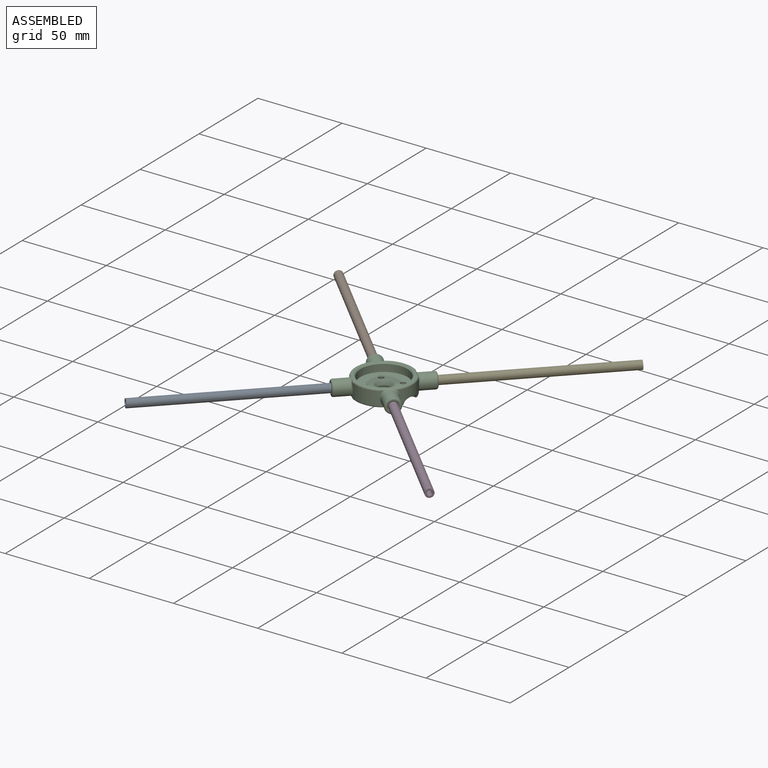
[diagram: assembled view]
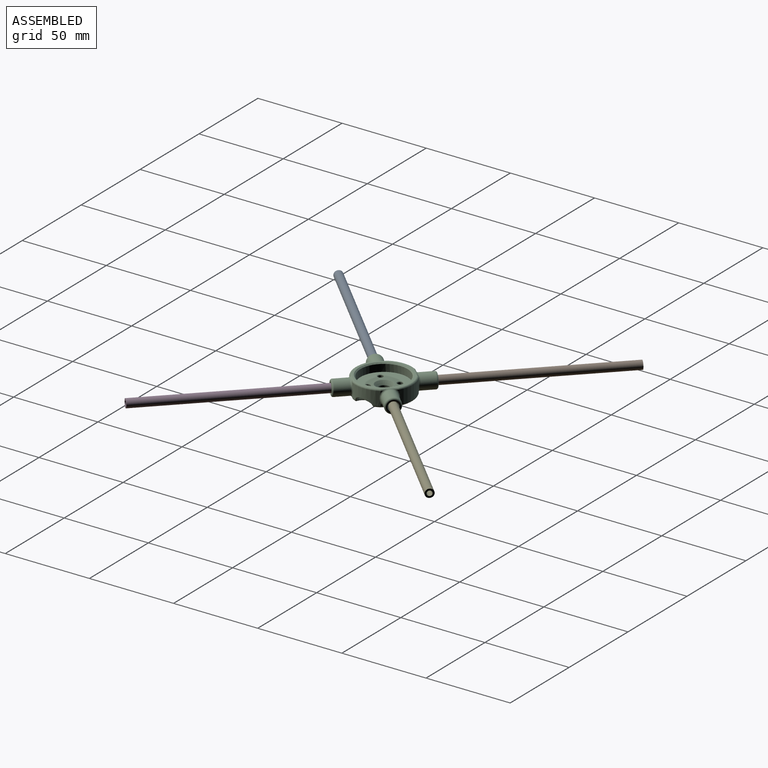
[diagram: assembled view, second angle]
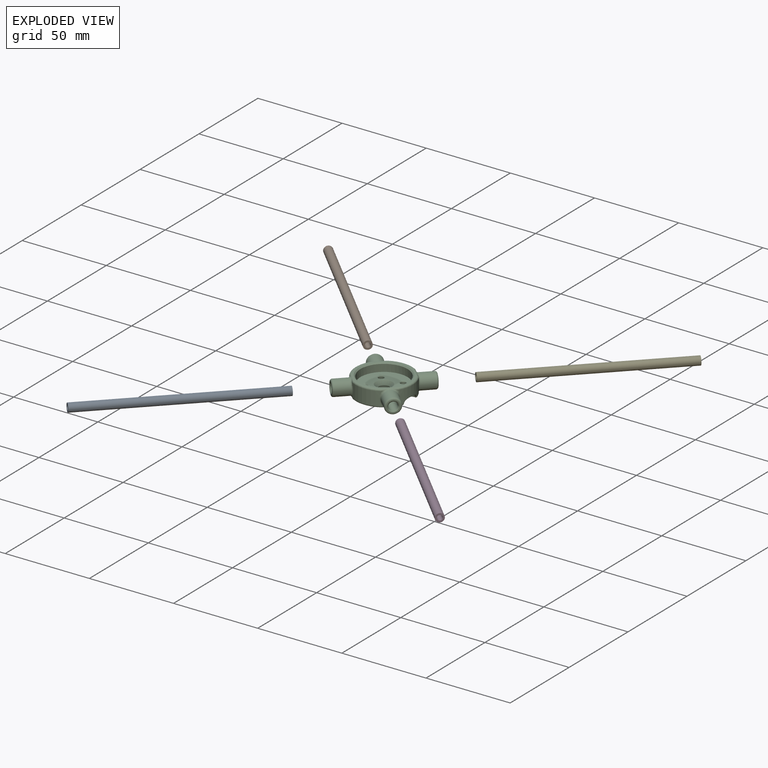
[diagram: exploded view]
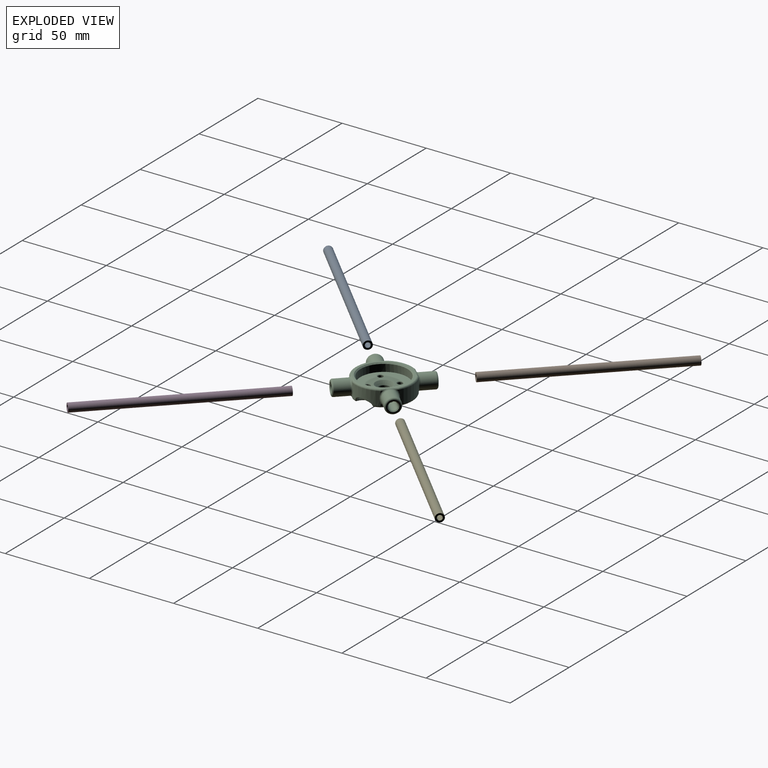
[diagram: exploded view, second angle]
ASSEMBLY  parts=5 mates=4
PART A: 4 faces, bbox 5x111x5 mm
  f0: cylinder r=1.5mm len=111mm, axis (0,1,0), area 1046.2mm2, adj f2,f3
  f1: cylinder r=2.5mm len=111mm, axis (0,1,0), area 1743.6mm2, adj f2,f3
  f2: plane 5x5mm, normal (0,-1,0), area 12.6mm2, adj f0,f1
  f3: plane 5x5mm, normal (0,1,0), area 12.6mm2, adj f0,f1
PART B: same geometry as A
PART C: 234 faces, bbox 43.4x43.4x11.4 mm
  f0: plane 28x27.3mm, normal (0,0,1), area 413.9mm2, adj f2,f218,f223,f230,f231,f232,f233
  f1: plane 32x31.19mm, normal (0,0,-1), area 657.5mm2, adj f4,f5,f47,f48,f49,f50,f51,f52
  f2: cylinder r=14mm len=28mm, axis (0,0,-1), area 377.1mm2, adj f0,f211,f217,f218
  f3: cylinder r=17mm len=16.82mm, axis (0,0,-1), area 113.3mm2, adj f4,f5,f151,f152,f153,f155,f157,f158
  f4: torus R=16mm, axis (0,0,1), area 3.6mm2, adj f1,f3,f174,f220
  f5: torus R=16mm, axis (0,0,1), area 5.3mm2, adj f1,f3,f177,f221
  f6: plane 0.65x0.42mm, normal (-0.71,0.71,0), area 0.2mm2, adj f70,f72,f133
  f7: plane 0.65x0.42mm, normal (-0.71,-0.71,0), area 0.2mm2, adj f65,f84,f200
  f8: plane 0.65x0.42mm, normal (0.71,-0.71,0), area 0.2mm2, adj f62,f86,f157
  f9: plane 0.65x0.42mm, normal (0.71,0.71,0), area 0.2mm2, adj f61,f93,f147
  f10: plane 0.65x0.42mm, normal (-0.71,0.71,0), area 0.2mm2, adj f56,f100,f187
  f11: plane 0.65x0.42mm, normal (-0.71,-0.71,0), area 0.2mm2, adj f55,f112,f196
  f12: plane 0.65x0.42mm, normal (0.71,-0.71,0), area 0.2mm2, adj f52,f114,f164
  f13: plane 0.65x0.42mm, normal (0.71,0.71,0), area 0.2mm2, adj f47,f121,f178
  f14: cylinder r=2.5mm len=10.25mm, axis (0.71,-0.71,0), area 149.2mm2, adj f46,f215
  f15: cylinder r=4.5mm len=12.41mm, axis (0.71,-0.71,0), area 232.3mm2, adj f71,f72,f73,f74,f75,f76,f77,f99
  f16: plane 7x4.95mm, normal (-0.71,0.71,0), area 10.2mm2, adj f127,f215
  f17: plane 5x3.54mm, normal (0.71,0.71,0), area 19.6mm2, adj f20
  f18: plane 7x4.95mm, normal (0.71,0.71,0), area 10.2mm2, adj f129,f212
  f19: cylinder r=4.5mm len=12.41mm, axis (-0.71,-0.71,0), area 232.3mm2, adj f92,f93,f94,f95,f96,f97,f98,f120
  f20: cylinder r=2.5mm len=10.25mm, axis (-0.71,-0.71,0), area 149.2mm2, adj f17,f212
  f21: plane 5x3.54mm, normal (0.71,-0.71,0), area 19.6mm2, adj f24
  f22: plane 7x4.95mm, normal (0.71,-0.71,0), area 10.2mm2, adj f128,f213
  f23: cylinder r=4.5mm len=12.41mm, axis (-0.71,0.71,0), area 232.3mm2, adj f85,f86,f87,f88,f89,f90,f91,f113
  f24: cylinder r=2.5mm len=10.25mm, axis (-0.71,0.71,0), area 149.2mm2, adj f21,f213
  f25: plane 5x3.54mm, normal (-0.71,-0.71,0), area 19.6mm2, adj f28
  f26: plane 7x4.95mm, normal (-0.71,-0.71,0), area 10.2mm2, adj f130,f214
  f27: cylinder r=4.5mm len=12.41mm, axis (0.71,0.71,0), area 232.2mm2, adj f78,f79,f80,f81,f82,f83,f84,f106
  f28: cylinder r=2.5mm len=10.25mm, axis (0.71,0.71,0), area 149.2mm2, adj f25,f214
  f29: cylinder r=3mm len=6mm, axis (0,0,-1), area 43.2mm2, adj f224,f225
  f30: cylinder r=1.55mm len=4mm, axis (0,0,-1), area 39mm2, adj f226,f230
  f31: cylinder r=1.55mm len=4mm, axis (0,0,-1), area 39mm2, adj f227,f231
  f32: cylinder r=1.55mm len=4mm, axis (0,0,-1), area 39mm2, adj f228,f232
  f33: cylinder r=1.55mm len=4mm, axis (0,0,-1), area 39mm2, adj f229,f233
  f34: plane 32x32mm, normal (0,0,1), area 112.4mm2, adj f59,f60,f61,f62,f63,f64,f65,f66
  f35: cylinder r=17mm len=16.82mm, axis (0,0,-1), area 134.8mm2, adj f141,f142,f143,f145,f147,f148,f149,f150
  f36: plane 0.65x0.42mm, normal (0.71,0.71,0), area 0.2mm2, adj f49,f125,f181
  f37: plane 0.65x0.42mm, normal (0.71,-0.71,0), area 0.2mm2, adj f50,f118,f173
  f38: cylinder r=17mm len=16.82mm, axis (0,0,-1), area 134.8mm2, adj f162,f163,f164,f166,f168,f169,f170,f198
  f39: plane 0.65x0.42mm, normal (-0.71,-0.71,0), area 0.2mm2, adj f53,f107,f169
  f40: cylinder r=17mm len=16.82mm, axis (0,0,-1), area 134.8mm2, adj f131,f132,f133,f135,f137,f138,f139,f140
  f41: plane 0.65x0.42mm, normal (-0.71,-0.71,0), area 0.2mm2, adj f67,f79,f137
  f42: plane 0.65x0.42mm, normal (0.71,-0.71,0), area 0.2mm2, adj f64,f90,f204
  f43: plane 0.65x0.42mm, normal (0.71,0.71,0), area 0.2mm2, adj f59,f97,f153
  f44: plane 0.65x0.42mm, normal (-0.71,0.71,0), area 0.2mm2, adj f58,f104,f190
  f45: plane 0.65x0.42mm, normal (-0.71,0.71,0), area 0.2mm2, adj f68,f76,f143
  f46: plane 5x3.54mm, normal (-0.71,0.71,0), area 19.6mm2, adj f14
  f47: cylinder r=1mm len=2.33mm, axis (-0.71,0.71,0), area 3.1mm2, adj f1,f13,f48,f122,f177
  f48: bspline ~4.29x4.29mm, area 3.2mm2, adj f1,f47,f49,f124
  f49: cylinder r=1mm len=2.33mm, axis (-0.71,0.71,0), area 3.1mm2, adj f1,f36,f48,f126,f182
  f50: cylinder r=1mm len=2.33mm, axis (0.71,0.71,0), area 3.1mm2, adj f1,f37,f51,f119,f174
  f51: bspline ~4.29x4.29mm, area 3.2mm2, adj f1,f50,f52,f117
  f52: cylinder r=1mm len=2.33mm, axis (0.71,0.71,0), area 3.1mm2, adj f1,f12,f51,f115,f165
  f53: cylinder r=1mm len=2.33mm, axis (0.71,-0.71,0), area 3.1mm2, adj f1,f39,f54,f108,f167
  f54: bspline ~4.29x4.29mm, area 3.2mm2, adj f1,f53,f55,f109
  f55: cylinder r=1mm len=2.33mm, axis (0.71,-0.71,0), area 3.1mm2, adj f1,f11,f54,f110,f195
  f56: cylinder r=1mm len=2.33mm, axis (-0.71,-0.71,0), area 3.1mm2, adj f1,f10,f57,f101,f186
  f57: bspline ~4.29x4.29mm, area 3.2mm2, adj f1,f56,f58,f103
  f58: cylinder r=1mm len=2.33mm, axis (-0.71,-0.71,0), area 3.1mm2, adj f1,f44,f57,f105,f191
  f59: cylinder r=1mm len=2.33mm, axis (0.71,-0.71,0), area 3.1mm2, adj f34,f43,f60,f98,f154
  f60: bspline ~4.29x4.29mm, area 3.2mm2, adj f34,f59,f61,f96
  f61: cylinder r=1mm len=2.33mm, axis (0.71,-0.71,0), area 3.1mm2, adj f9,f34,f60,f94,f146
  f62: cylinder r=1mm len=2.33mm, axis (-0.71,-0.71,0), area 3.1mm2, adj f8,f34,f63,f87,f156
  f63: bspline ~4.29x4.29mm, area 3.2mm2, adj f34,f62,f64,f89
  f64: cylinder r=1mm len=2.33mm, axis (-0.71,-0.71,0), area 3.1mm2, adj f34,f42,f63,f91,f203
  f65: cylinder r=1mm len=2.33mm, axis (-0.71,0.71,0), area 3.1mm2, adj f7,f34,f66,f82,f201
  f66: bspline ~4.29x4.29mm, area 3.2mm2, adj f34,f65,f67,f81
  f67: cylinder r=1mm len=2.33mm, axis (-0.71,0.71,0), area 3.1mm2, adj f34,f41,f66,f80,f136
  f68: cylinder r=1mm len=2.33mm, axis (0.71,0.71,0), area 3.1mm2, adj f34,f45,f69,f77,f144
  f69: bspline ~4.29x4.29mm, area 3.2mm2, adj f34,f68,f70,f75
  f70: cylinder r=1mm len=2.33mm, axis (0.71,0.71,0), area 3.1mm2, adj f6,f34,f69,f73,f134
  f71: bspline ~1.33x1.15mm, area 0.5mm2, adj f15,f72,f131,f161
  f72: torus R=5.5mm, axis (-0.71,0.71,0), area 1.5mm2, adj f6,f15,f71,f73,f132
  f73: bspline ~2.78x2.7mm, area 2.2mm2, adj f15,f70,f72,f75
  f74: bspline ~1.33x1.15mm, area 0.5mm2, adj f15,f76,f141,f209
  f75: bspline ~3.49x3.49mm, area 3.1mm2, adj f15,f69,f73,f77
  f76: torus R=5.5mm, axis (-0.71,0.71,0), area 1.5mm2, adj f15,f45,f74,f77,f142
  f77: bspline ~2.4x1.99mm, area 2.2mm2, adj f15,f68,f75,f76
  f78: bspline ~1.33x1.15mm, area 0.5mm2, adj f27,f79,f139,f140
  f79: torus R=5.5mm, axis (0.71,0.71,0), area 1.5mm2, adj f27,f41,f78,f80,f138
  f80: bspline ~2.4x1.99mm, area 2.2mm2, adj f27,f67,f79,f81
  f81: bspline ~3.46x3.45mm, area 3.1mm2, adj f27,f66,f80,f82
  f82: bspline ~2.78x2.7mm, area 2.2mm2, adj f27,f65,f81,f84
  f83: bspline ~1.33x1.15mm, area 0.5mm2, adj f27,f84,f198,f208
  f84: torus R=5.5mm, axis (0.71,0.71,0), area 1.5mm2, adj f7,f27,f82,f83,f199
  f85: bspline ~1.33x1.15mm, area 0.5mm2, adj f23,f86,f158,f160
  f86: torus R=5.5mm, axis (-0.71,0.71,0), area 1.5mm2, adj f8,f23,f85,f87,f159
  f87: bspline ~2.78x2.7mm, area 2.2mm2, adj f23,f62,f86,f89
  f88: bspline ~1.33x1.15mm, area 0.5mm2, adj f23,f90,f206,f207
  f89: bspline ~3.46x3.45mm, area 3.1mm2, adj f23,f63,f87,f91
  f90: torus R=5.5mm, axis (-0.71,0.71,0), area 1.5mm2, adj f23,f42,f88,f91,f205
  f91: bspline ~2.4x1.99mm, area 2.2mm2, adj f23,f64,f89,f90
  f92: bspline ~1.33x1.15mm, area 0.5mm2, adj f19,f93,f148,f150
  f93: torus R=5.5mm, axis (0.71,0.71,0), area 1.5mm2, adj f9,f19,f92,f94,f149
  f94: bspline ~2.78x2.7mm, area 2.2mm2, adj f19,f61,f93,f96
  f95: bspline ~1.33x1.15mm, area 0.5mm2, adj f19,f97,f151,f197
  f96: bspline ~3.49x3.49mm, area 3.1mm2, adj f19,f60,f94,f98
  f97: torus R=5.5mm, axis (0.71,0.71,0), area 1.5mm2, adj f19,f43,f95,f98,f152
  f98: bspline ~2.4x1.99mm, area 2.2mm2, adj f19,f59,f96,f97
  f99: bspline ~1.33x1.15mm, area 0.5mm2, adj f15,f100,f183,f209
  f100: torus R=5.5mm, axis (-0.71,0.71,0), area 1.5mm2, adj f10,f15,f99,f101,f185
  f101: bspline ~2.78x2.7mm, area 2.2mm2, adj f15,f56,f100,f103
  f102: bspline ~1.33x1.15mm, area 0.5mm2, adj f15,f104,f161,f188
  f103: bspline ~3.49x3.49mm, area 3.1mm2, adj f15,f57,f101,f105
  f104: torus R=5.5mm, axis (-0.71,0.71,0), area 1.5mm2, adj f15,f44,f102,f105,f189
  f105: bspline ~2.4x1.99mm, area 2.2mm2, adj f15,f58,f103,f104
  f106: bspline ~1.33x1.15mm, area 0.5mm2, adj f27,f107,f168,f208
  f107: torus R=5.5mm, axis (0.71,0.71,0), area 1.5mm2, adj f27,f39,f106,f108,f170
  f108: bspline ~2.4x1.99mm, area 2.2mm2, adj f27,f53,f107,f109
  f109: bspline ~3.46x3.45mm, area 3.1mm2, adj f27,f54,f108,f110
  f110: bspline ~2.78x2.7mm, area 2.2mm2, adj f27,f55,f109,f112
  f111: bspline ~1.33x1.15mm, area 0.5mm2, adj f27,f112,f140,f192
  f112: torus R=5.5mm, axis (0.71,0.71,0), area 1.5mm2, adj f11,f27,f110,f111,f194
  f113: bspline ~1.33x1.15mm, area 0.5mm2, adj f23,f114,f162,f207
  f114: torus R=5.5mm, axis (-0.71,0.71,0), area 1.5mm2, adj f12,f23,f113,f115,f163
  f115: bspline ~2.78x2.7mm, area 2.2mm2, adj f23,f52,f114,f117
  f116: bspline ~1.33x1.15mm, area 0.5mm2, adj f23,f118,f160,f171
  f117: bspline ~3.46x3.45mm, area 3.1mm2, adj f23,f51,f115,f119
  f118: torus R=5.5mm, axis (-0.71,0.71,0), area 1.5mm2, adj f23,f37,f116,f119,f172
  f119: bspline ~2.4x1.99mm, area 2.2mm2, adj f23,f50,f117,f118
  f120: bspline ~1.33x1.15mm, area 0.5mm2, adj f19,f121,f175,f197
  f121: torus R=5.5mm, axis (0.71,0.71,0), area 1.5mm2, adj f13,f19,f120,f122,f176
  f122: bspline ~2.78x2.7mm, area 2.2mm2, adj f19,f47,f121,f124
  f123: bspline ~1.33x1.15mm, area 0.5mm2, adj f19,f125,f150,f179
  f124: bspline ~3.49x3.49mm, area 3.1mm2, adj f19,f48,f122,f126
  f125: torus R=5.5mm, axis (0.71,0.71,0), area 1.5mm2, adj f19,f36,f123,f126,f180
  f126: bspline ~2.4x1.99mm, area 2.2mm2, adj f19,f49,f124,f125
  f127: torus R=3.5mm, axis (-0.71,0.71,0), area 40.8mm2, adj f15,f16
  f128: torus R=3.5mm, axis (0.71,-0.71,0), area 40.8mm2, adj f22,f23
  f129: torus R=3.5mm, axis (0.71,0.71,0), area 40.8mm2, adj f18,f19
  f130: torus R=3.5mm, axis (0.71,0.71,0), area 40.8mm2, adj f26,f27
  f131: bspline ~0.44x0.19mm, area 0mm2, adj f40,f71,f132
  f132: bspline ~0.62x0.28mm, area 0.1mm2, adj f40,f72,f131,f133
  f133: cylinder r=1mm len=0.65mm, axis (0,0,-1), area 0.2mm2, adj f6,f40,f132,f134
  f134: sphere r=1mm, area 0.3mm2, adj f70,f133,f135
  f135: torus R=16mm, axis (0,0,1), area 26.6mm2, adj f34,f40,f134,f136
  f136: sphere r=1mm, area 0.3mm2, adj f67,f135,f137
  f137: cylinder r=1mm len=0.65mm, axis (0,0,-1), area 0.2mm2, adj f40,f41,f136,f138
  f138: bspline ~0.89x0.36mm, area 0.1mm2, adj f40,f79,f137,f139
  f139: bspline ~0.41x0.17mm, area 0mm2, adj f40,f78,f138
  f140: bspline ~7.51x2.31mm, area 6.6mm2, adj f27,f40,f78,f111
  f141: bspline ~0.41x0.17mm, area 0mm2, adj f35,f74,f142
  f142: bspline ~0.89x0.36mm, area 0.1mm2, adj f35,f76,f141,f143
  f143: cylinder r=1mm len=0.65mm, axis (0,0,-1), area 0.2mm2, adj f35,f45,f142,f144
  f144: sphere r=1mm, area 0.3mm2, adj f68,f143,f145
  f145: torus R=16mm, axis (0,0,1), area 26.6mm2, adj f34,f35,f144,f146
  f146: sphere r=1mm, area 0.3mm2, adj f61,f145,f147
  f147: cylinder r=1mm len=0.65mm, axis (0,0,-1), area 0.2mm2, adj f9,f35,f146,f149
  f148: bspline ~0.44x0.19mm, area 0mm2, adj f35,f92,f149
  f149: bspline ~0.62x0.28mm, area 0.1mm2, adj f35,f93,f147,f148
  f150: bspline ~7.51x2.31mm, area 6.6mm2, adj f19,f35,f92,f123
  f151: bspline ~0.41x0.17mm, area 0mm2, adj f3,f95,f152
  f152: bspline ~0.89x0.36mm, area 0.1mm2, adj f3,f97,f151,f153
  f153: cylinder r=1mm len=0.65mm, axis (0,0,-1), area 0.2mm2, adj f3,f43,f152,f154
  f154: sphere r=1mm, area 0.3mm2, adj f59,f153,f155
  f155: torus R=16mm, axis (0,0,1), area 26.6mm2, adj f3,f34,f154,f156
  f156: sphere r=1mm, area 0.3mm2, adj f62,f155,f157
  f157: cylinder r=1mm len=0.65mm, axis (0,0,-1), area 0.2mm2, adj f3,f8,f156,f159
  f158: bspline ~0.44x0.19mm, area 0mm2, adj f3,f85,f159
  f159: bspline ~0.62x0.28mm, area 0.1mm2, adj f3,f86,f157,f158
  f160: bspline ~7.51x2.31mm, area 6.6mm2, adj f3,f23,f85,f116
  f161: bspline ~7.51x2.31mm, area 6.6mm2, adj f15,f40,f71,f102
  f162: bspline ~0.41x0.17mm, area 0mm2, adj f38,f113,f163
  f163: bspline ~0.53x0.24mm, area 0.1mm2, adj f38,f114,f162,f164
  f164: cylinder r=1mm len=0.65mm, axis (0,0,-1), area 0.2mm2, adj f12,f38,f163,f165
  f165: sphere r=1mm, area 0.3mm2, adj f52,f164,f166
  f166: torus R=16mm, axis (0,0,1), area 26.6mm2, adj f1,f38,f165,f167
  f167: sphere r=1mm, area 0.3mm2, adj f53,f166,f169
  f168: bspline ~0.44x0.19mm, area 0mm2, adj f38,f106,f170
  f169: cylinder r=1mm len=0.65mm, axis (0,0,-1), area 0.2mm2, adj f38,f39,f167,f170
  f170: bspline ~0.46x0.23mm, area 0.1mm2, adj f38,f107,f168,f169
  f171: bspline ~0.44x0.19mm, area 0mm2, adj f3,f116,f172
  f172: bspline ~0.67x0.28mm, area 0.1mm2, adj f3,f118,f171,f173
  f173: cylinder r=1mm len=0.65mm, axis (0,0,-1), area 0.2mm2, adj f3,f37,f172,f174
  f174: sphere r=1mm, area 0.3mm2, adj f4,f50,f173
  f175: bspline ~0.41x0.17mm, area 0mm2, adj f3,f120,f176
  f176: bspline ~0.95x0.36mm, area 0.1mm2, adj f3,f121,f175,f178
  f177: sphere r=1mm, area 0.3mm2, adj f5,f47,f178
  f178: cylinder r=1mm len=0.65mm, axis (0,0,-1), area 0.2mm2, adj f3,f13,f176,f177
  f179: bspline ~0.44x0.19mm, area 0mm2, adj f35,f123,f180
  f180: bspline ~0.67x0.28mm, area 0.1mm2, adj f35,f125,f179,f181
  f181: cylinder r=1mm len=0.65mm, axis (0,0,-1), area 0.2mm2, adj f35,f36,f180,f182
  f182: sphere r=1mm, area 0.3mm2, adj f49,f181,f184
  f183: bspline ~0.41x0.17mm, area 0mm2, adj f35,f99,f185
  f184: torus R=16mm, axis (0,0,1), area 26.6mm2, adj f1,f35,f182,f186
  f185: bspline ~0.53x0.24mm, area 0.1mm2, adj f35,f100,f183,f187
  f186: sphere r=1mm, area 0.3mm2, adj f56,f184,f187
  f187: cylinder r=1mm len=0.65mm, axis (0,0,-1), area 0.2mm2, adj f10,f35,f185,f186
  f188: bspline ~0.44x0.19mm, area 0mm2, adj f40,f102,f189
  f189: bspline ~0.67x0.28mm, area 0.1mm2, adj f40,f104,f188,f190
  f190: cylinder r=1mm len=0.65mm, axis (0,0,-1), area 0.2mm2, adj f40,f44,f189,f191
  f191: sphere r=1mm, area 0.3mm2, adj f58,f190,f193
  f192: bspline ~0.41x0.17mm, area 0mm2, adj f40,f111,f194
  f193: torus R=16mm, axis (0,0,1), area 26.6mm2, adj f1,f40,f191,f195
  f194: bspline ~0.53x0.24mm, area 0.1mm2, adj f40,f112,f192,f196
  f195: sphere r=1mm, area 0.3mm2, adj f55,f193,f196
  f196: cylinder r=1mm len=0.65mm, axis (0,0,-1), area 0.2mm2, adj f11,f40,f194,f195
  f197: bspline ~7.51x2.31mm, area 6.6mm2, adj f3,f19,f95,f120
  f198: bspline ~0.44x0.19mm, area 0mm2, adj f38,f83,f199
  f199: bspline ~0.62x0.28mm, area 0.1mm2, adj f38,f84,f198,f200
  f200: cylinder r=1mm len=0.65mm, axis (0,0,-1), area 0.2mm2, adj f7,f38,f199,f201
  f201: sphere r=1mm, area 0.3mm2, adj f65,f200,f202
  f202: torus R=16mm, axis (0,0,1), area 26.6mm2, adj f34,f38,f201,f203
  f203: sphere r=1mm, area 0.3mm2, adj f64,f202,f204
  f204: cylinder r=1mm len=0.65mm, axis (0,0,-1), area 0.2mm2, adj f38,f42,f203,f205
  f205: bspline ~0.89x0.36mm, area 0.1mm2, adj f38,f90,f204,f206
  f206: bspline ~0.41x0.17mm, area 0mm2, adj f38,f88,f205
  f207: bspline ~7.51x2.31mm, area 6.6mm2, adj f23,f38,f88,f113
  f208: bspline ~7.51x2.31mm, area 6.6mm2, adj f27,f38,f83,f106
  f209: bspline ~7.51x2.31mm, area 6.6mm2, adj f15,f35,f74,f99
  f210: cone r=3mm half-angle=45deg, axis (0,0,1), area 60.7mm2, adj f223,f224
  f211: cone r=14mm half-angle=45deg, axis (0,0,1), area 89.3mm2, adj f2,f34
  f212: cone r=2.5mm half-angle=45deg, axis (0.71,0.71,0), area 12.2mm2, adj f18,f20
  f213: cone r=2.5mm half-angle=45deg, axis (0.71,-0.71,0), area 12.2mm2, adj f22,f24
  f214: cone r=3mm half-angle=45deg, axis (-0.71,-0.71,0), area 12.2mm2, adj f26,f28
  f215: cone r=2.5mm half-angle=45deg, axis (-0.71,0.71,0), area 12.2mm2, adj f14,f16
  f216: extruded ~10.48x9.89mm, area 108.7mm2, adj f217,f218,f219,f220,f221,f222
  f217: bspline ~8.91x1.49mm, area 3.3mm2, adj f2,f216,f218
  f218: bspline ~11.05x7.44mm, area 11.8mm2, adj f0,f2,f216,f217
  f219: bspline ~11.25x3.26mm, area 13.9mm2, adj f3,f216,f220,f221
  f220: bspline ~1.51x1.21mm, area 1.1mm2, adj f4,f216,f219,f222
  f221: bspline ~1.57x1.22mm, area 1.2mm2, adj f5,f216,f219,f222
  f222: bspline ~11.05x4.93mm, area 15.4mm2, adj f1,f216,f220,f221
  f223: torus R=5.21mm, axis (0,0,1), area 12.4mm2, adj f0,f210
  f224: torus R=3.5mm, axis (0,0,-1), area 7.5mm2, adj f29,f210
  f225: torus R=3.5mm, axis (0,0,1), area 15.7mm2, adj f1,f29
  f226: torus R=2.05mm, axis (0,0,1), area 8.5mm2, adj f1,f30
  f227: torus R=2.05mm, axis (0,0,1), area 8.5mm2, adj f1,f31
  f228: torus R=2.05mm, axis (0,0,1), area 8.5mm2, adj f1,f32
  f229: torus R=2.05mm, axis (0,0,1), area 8.5mm2, adj f1,f33
  f230: torus R=2.05mm, axis (0,0,1), area 8.5mm2, adj f0,f30
  f231: torus R=2.05mm, axis (0,0,1), area 8.5mm2, adj f0,f31
  f232: torus R=2.05mm, axis (0,0,1), area 8.5mm2, adj f0,f32
  f233: torus R=2.05mm, axis (0,0,1), area 8.5mm2, adj f0,f33
PART D: same geometry as A
PART E: same geometry as A
PLACE A rot(axis=(-0.36,-0.86,-0.36),98.4deg) t=(-51.12,-51.12,5)mm
PLACE B rot(axis=(0.92,0.38,0),180deg) t=(-51.12,51.12,5)mm
PLACE C at identity fixed
PLACE D rot(axis=(0,0,-1),135deg) t=(51.12,-51.12,5)mm
PLACE E rot(axis=(-0.68,0.28,0.68),148.6deg) t=(51.12,51.12,5)mm
MATE slider E.f0 <-> C.f79  axis (-0.71,-0.71,0) through (11.87,11.87,5)mm
MATE slider D.f0 <-> C.f14  axis (-0.71,0.71,0) through (11.87,-11.87,5)mm
MATE slider A.f0 <-> C.f214  axis (0.71,0.71,0) through (-11.87,-11.87,5)mm
MATE slider B.f0 <-> C.f86  axis (0.71,-0.71,0) through (-11.87,11.87,5)mm
